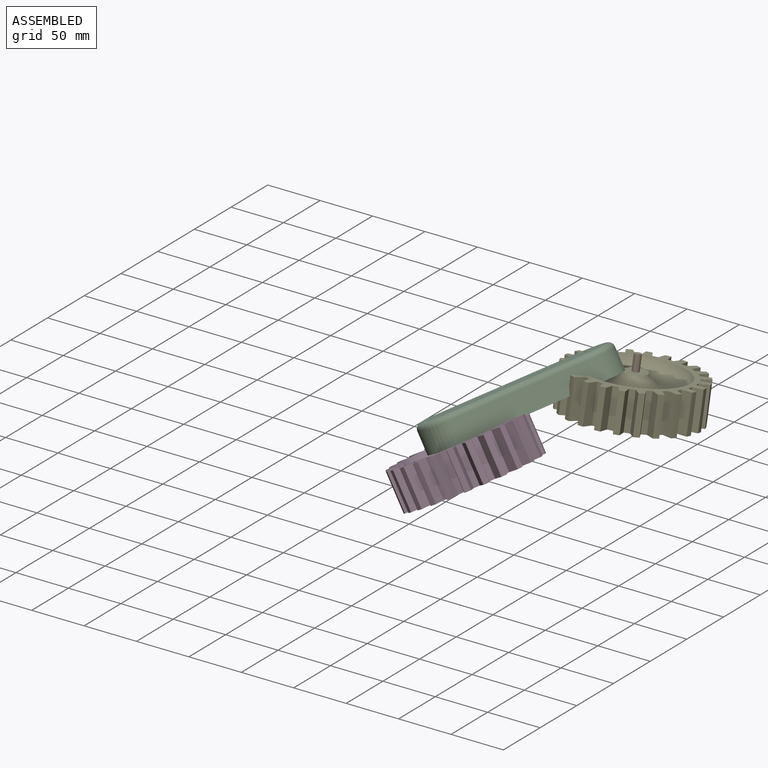
[diagram: assembled view]
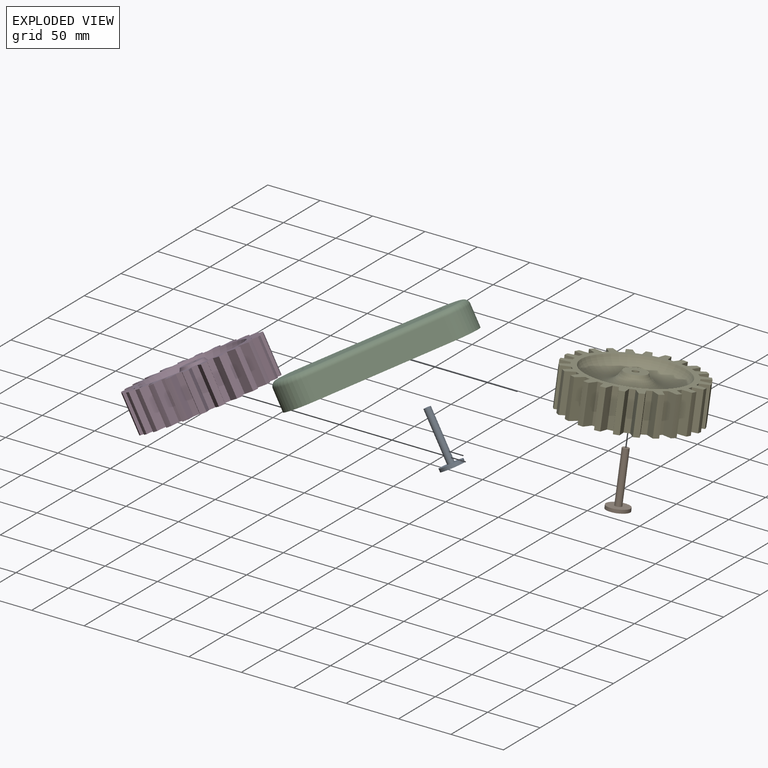
[diagram: exploded view]
GUIDED TOUR — MATED ASSEMBLY (Onshape document 02ab2bfb4b7f6fd71e4ae773, AutoMate assembly 02ab2bfb4b7f6fd71e4ae773_ee6dad4f6289096f42724e85_e1687646da14800b51054b00_default)

This assembly has 5 components, labeled P0..P4 below (a component is one placed occurrence of a part; the same part can appear more than once), held together by 4 mates. A mate is a constraint between two components; its type names the relative motion it leaves free:
  REVOLUTE — leaves rotation about the listed axis free (a hinge).
Axis/direction vectors are unit vectors and 'through' points are millimeter coordinates, both in the assembly's world frame.

MATES
  1. REVOLUTE "Revolute 2": P4 <-> P4, axis (-0.013, -0.196, -0.980) through (78.75, 74.72, 134.48) mm
  2. REVOLUTE "Revolute 5": P4 <-> P1, axis (-0.013, -0.196, -0.980) through (78.30, 67.67, 99.25) mm
  3. REVOLUTE "Revolute 1": P0 <-> P2, axis (-0.507, 0.041, 0.861) through (-28.40, -32.25, 111.13) mm
  4. REVOLUTE "Revolute 3": P3 <-> P0, axis (-0.507, 0.041, 0.861) through (-16.33, -33.23, 90.63) mm

ASSEMBLY ORDER
  1. P4 — the base component [order heuristic]
  2. P0 [order heuristic]
  3. P1 [order heuristic]
  4. P2 [order heuristic]
  5. P3 [order heuristic]
Order-tag legend:
  [order heuristic] — this assembly is geometrically interlocked (no collision-free removal order exists), so components are listed in mate-graph order; insertion feasibility is not verified.

Of the 5 components, 1 carries the full construction recipe — the FeatureScript program that regenerates the part's solid from scratch; the rest are supplied as boundary geometry only.
Each toured component is shown spotlighted twice — in the assembled view, then in the exploded view, where a leader line traces a displaced component back to its assembled socket (saturated green if recipe-attached, orange if geometry-only; every other component desaturated gray) — followed by its recipe or geometry summary and the mates that hold it.
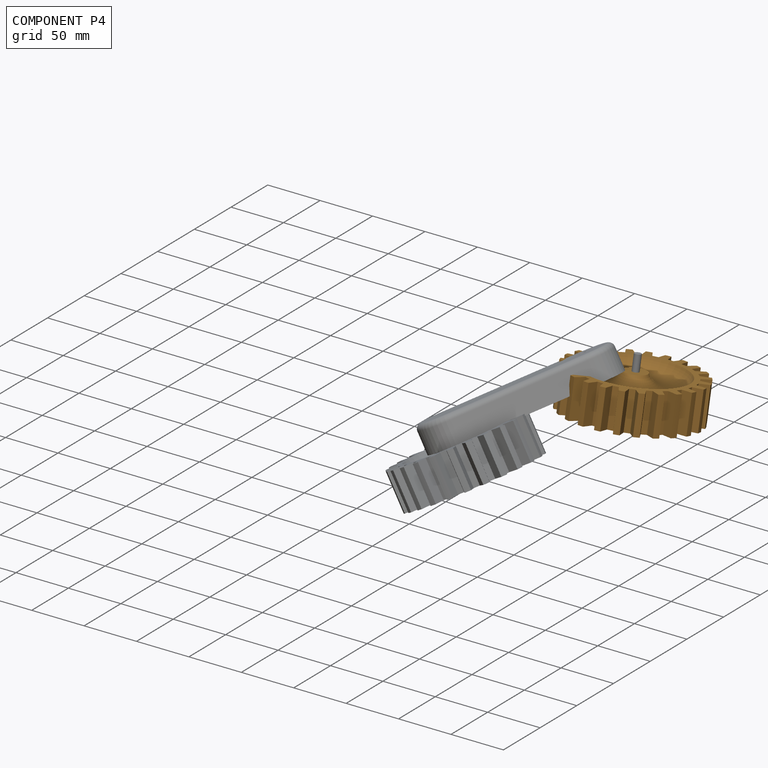
[diagram: component P4 — assembled]
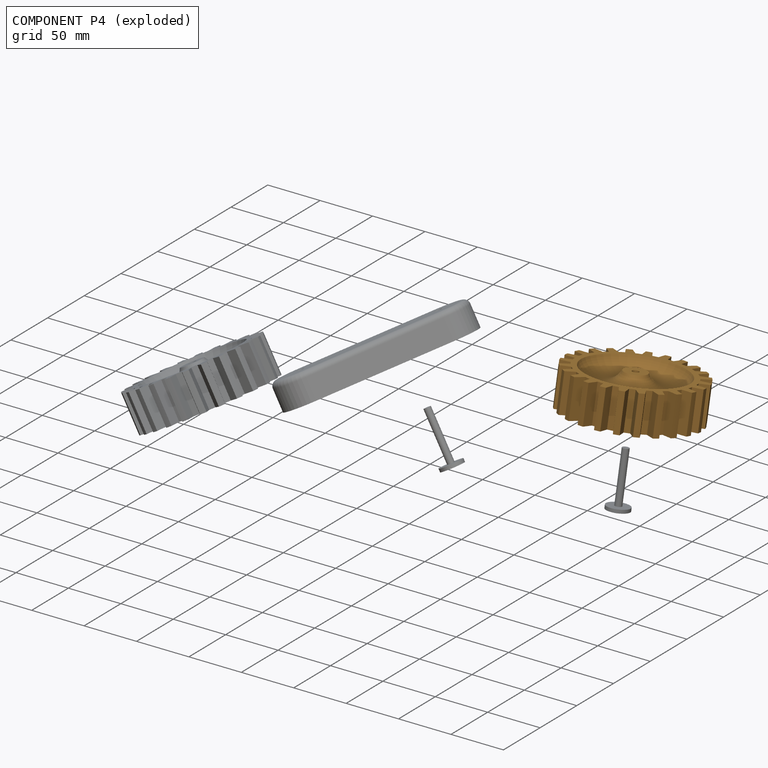
[diagram: component P4 — exploded]
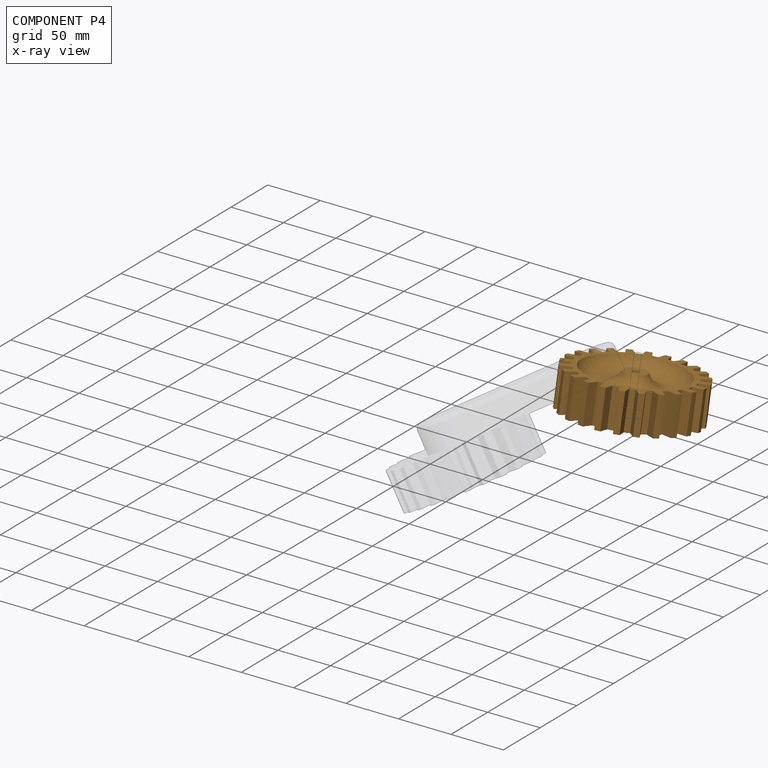
[diagram: component P4 — x-ray view]
COMPONENT P4 — geometry summary (no construction recipe available for this part):
  bounding box: 120.8 x 120.8 x 50.9 mm
  B-rep topology: 1 solid, 103 faces, 594 edges
  volume: 241108 mm^3 (32% of its bounding box)
  symmetry: 6-fold rotationally symmetric about the x axis; 2-fold rotationally symmetric about the y axis; 2-fold rotationally symmetric about the z axis; mirror-symmetric across its x mid-plane, y mid-plane, z mid-plane
Held by: REVOLUTE mate "Revolute 2" to P4; REVOLUTE mate "Revolute 5" to P1.
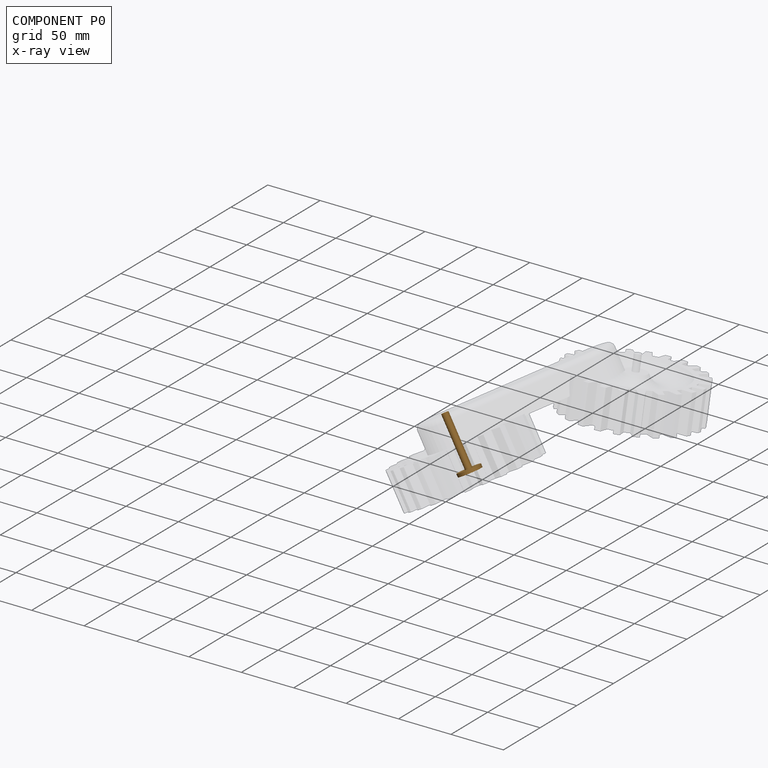
[diagram: component P0 — x-ray view]
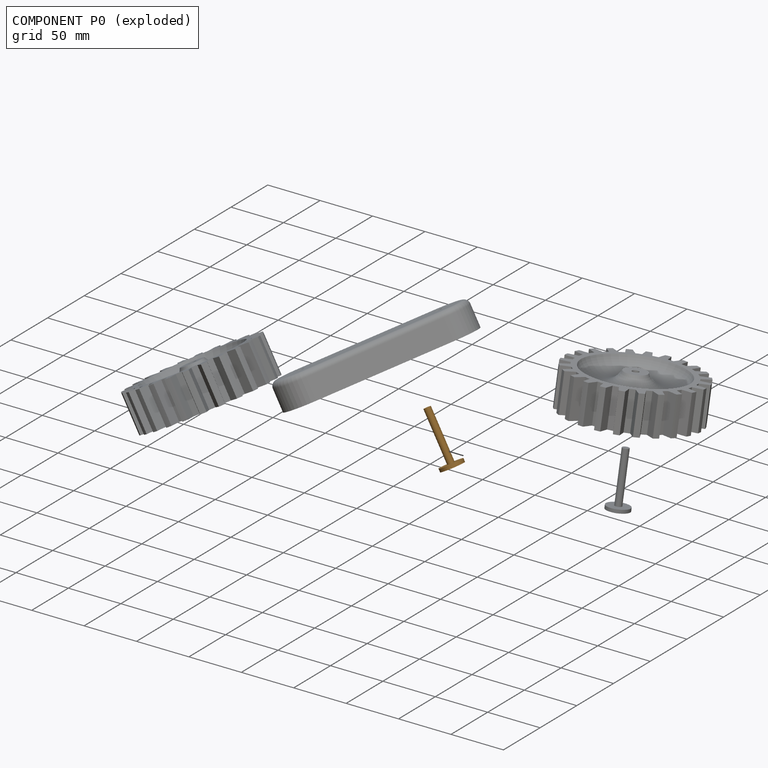
[diagram: component P0 — exploded]
COMPONENT P0 — geometry summary (no construction recipe available for this part):
  bounding box: 50.8 x 21.1 x 21.1 mm
  B-rep topology: 1 solid, 5 faces, 14 edges
  volume: 2623 mm^3 (12% of its bounding box)
  symmetry: revolution-symmetric about the y axis through its bounding-box center; mirror-symmetric across its x mid-plane, z mid-plane
Held by: REVOLUTE mate "Revolute 1" to P2; REVOLUTE mate "Revolute 3" to P3.
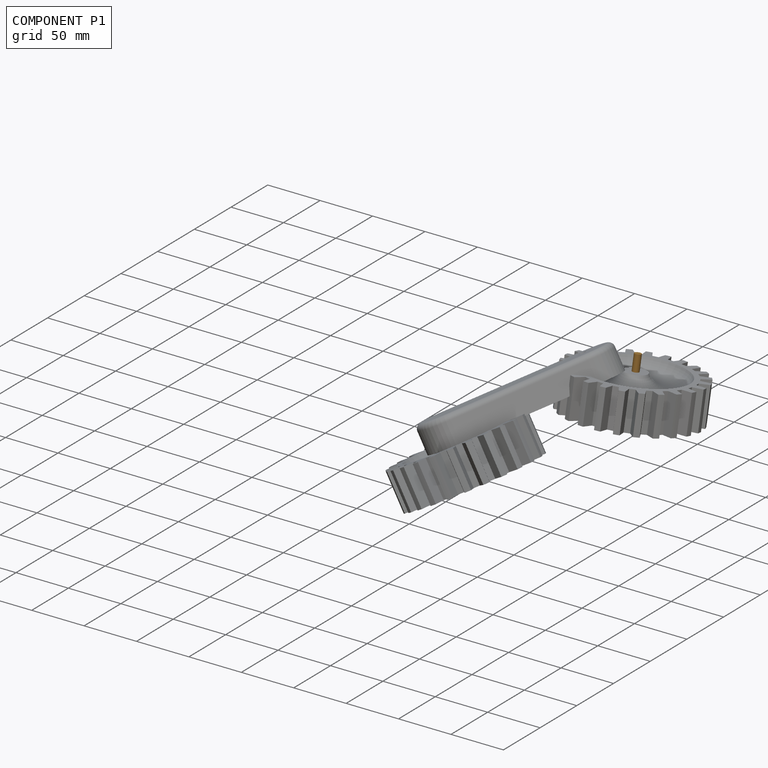
[diagram: component P1 — assembled]
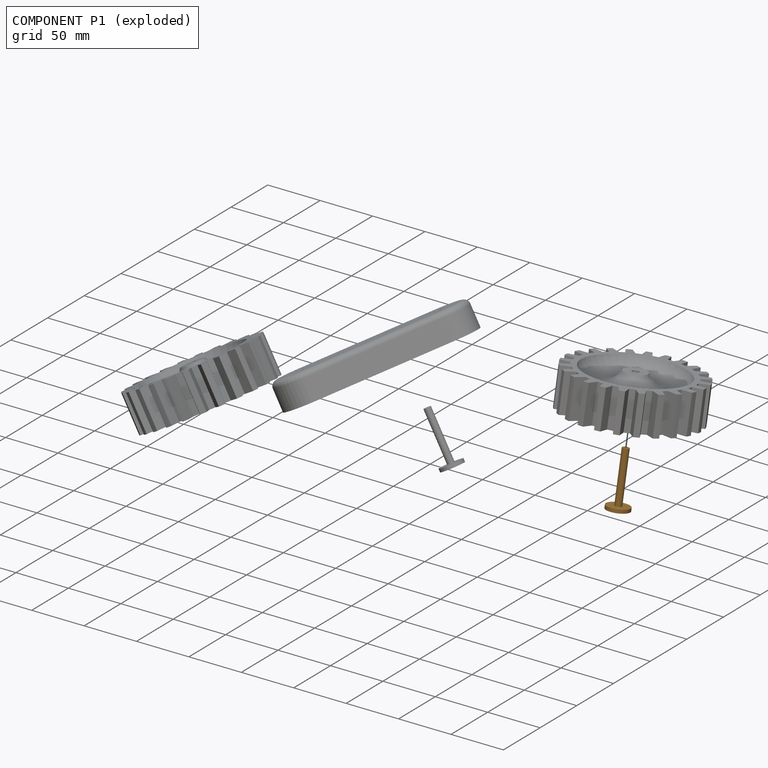
[diagram: component P1 — exploded]
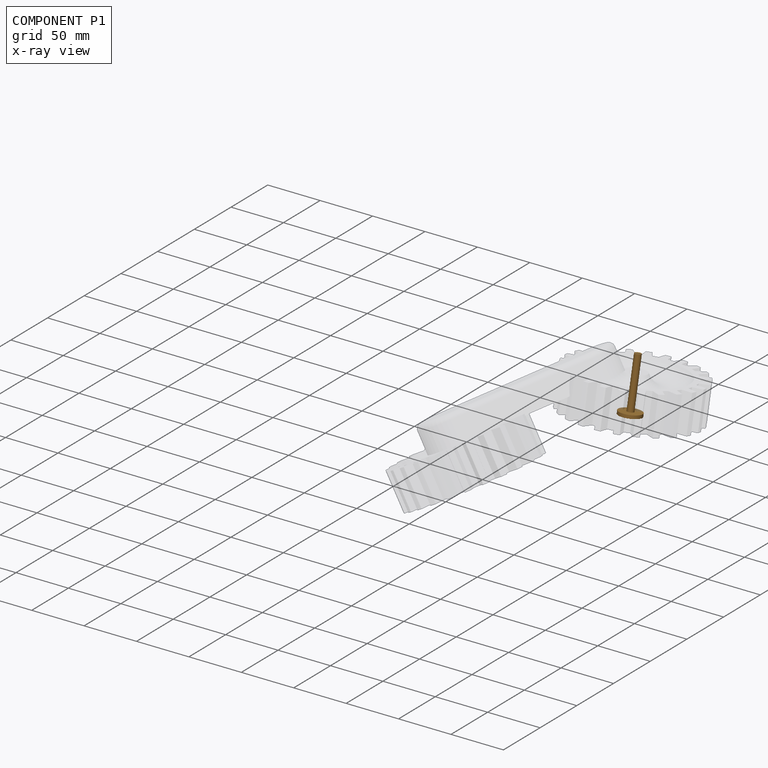
[diagram: component P1 — x-ray view]
COMPONENT P1 — geometry summary (no construction recipe available for this part):
  bounding box: 50.8 x 21.1 x 21.1 mm
  B-rep topology: 1 solid, 5 faces, 14 edges
  volume: 2623 mm^3 (12% of its bounding box)
  symmetry: revolution-symmetric about the y axis through its bounding-box center; mirror-symmetric across its x mid-plane, z mid-plane
Held by: REVOLUTE mate "Revolute 5" to P4.
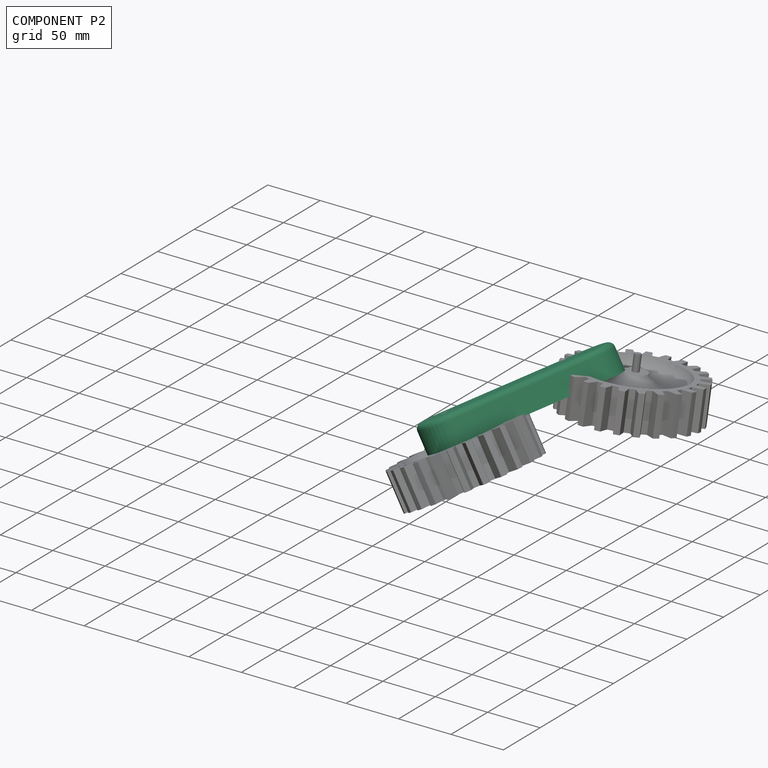
[diagram: component P2 — assembled]
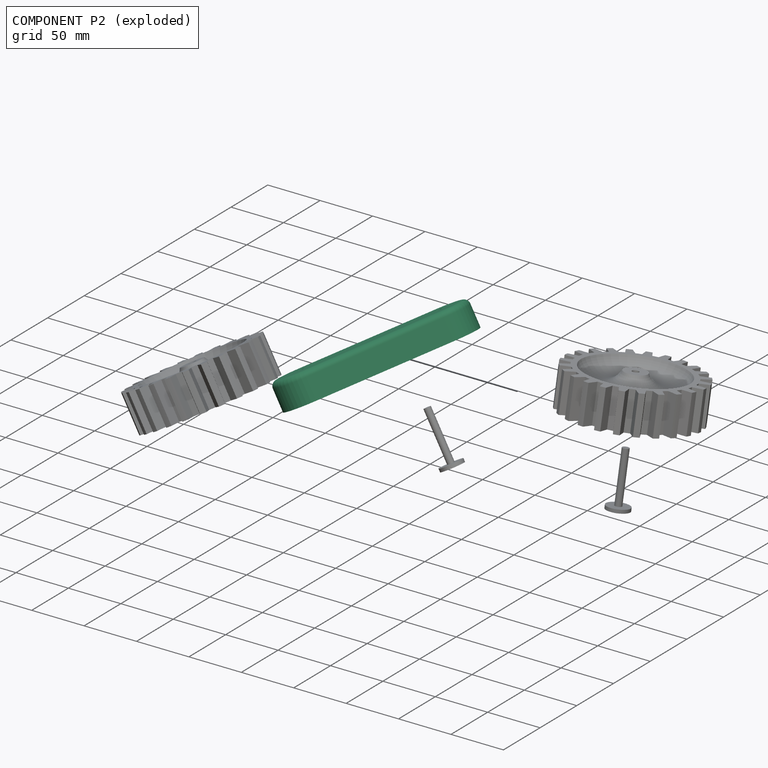
[diagram: component P2 — exploded]
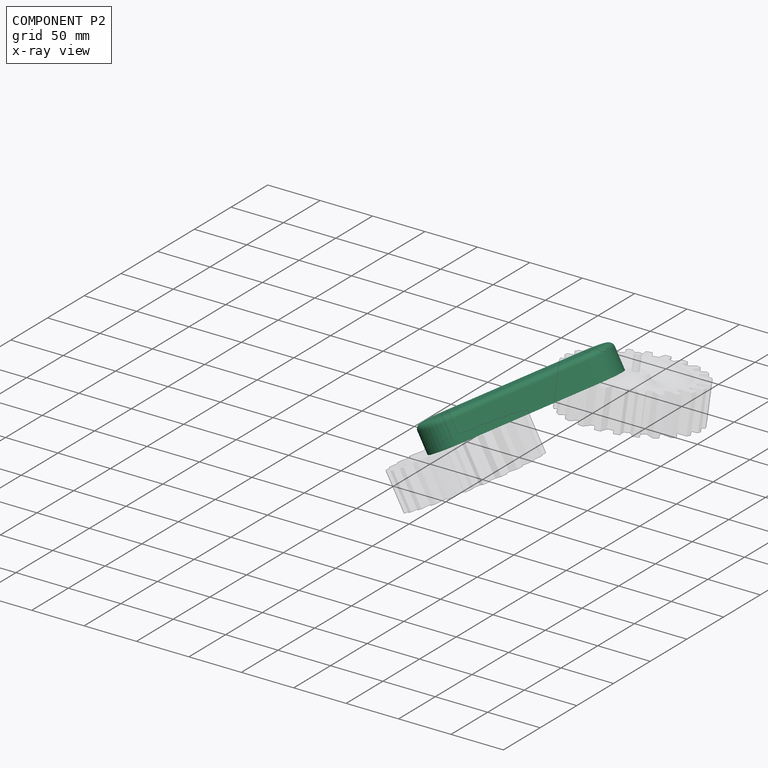
[diagram: component P2 — x-ray view]
COMPONENT P2 — recipe-attached (CADFS 00214591, mesh-verified: the recipe's output STEP matches this component's geometry to below the mesh-comparison resolution (tessellation chordal tolerance ~0.266 mm)).
Held by: REVOLUTE mate "Revolute 1" to P0.
Construction recipe (FeatureScript — the CAD program that rebuilds this solid; sketch coordinates are in the units given by the * unit suffixes, e.g. mm):

FeatureScript 1511;
import(path : "onshape/std/geometry.fs", version : "1511.0");
import(path : "onshape/std/common.fs", version : "1511.0");
const mm = millimeter;
const VERTEX = EntityType.VERTEX;
const EDGE = EntityType.EDGE;
const FACE = EntityType.FACE;
const BODY = EntityType.BODY;
function v(x, y){return vector(x, y);}
function OD(order){return orderDisambiguation(order);}
function OSD(set){return originalSetDisambiguation(set);}
function TD(topology){return topologyDisambiguation(topology);}
function TDD(query){return trueDependencyDisambiguation(query);}
function sQuery(a, b, c) {return sketchEntityQuery(a, b, c);}

annotation { "Feature Type Name" : "Feature", "Feature Type Description" : "" }
export const myFeature = defineFeature(function(context is Context, id is Id, definition is map)
    precondition{}
    {
        {
            var Q0;
            Q0=qCreatedBy(makeId("Front.planeOp"),FACE);
            var sketch = newSketch(context, id + "F0", { "sketchPlane" : qUnion([Q0])});
            skLineSegment(sketch, "E0", {"start": v(0, 0) * mm, "end": v(-58.8, 0) * mm});
            skLineSegment(sketch, "E1", {"start": v(0, 0) * mm, "end": v(58.8, 0) * mm});
            skCircle(sketch, "E2", {"center": v(-58.8, 0) * mm, "radius": 3.18 * mm});
            skCircle(sketch, "E3", {"center": v(58.8, 0) * mm, "radius": 3.17 * mm});
            skLineSegment(sketch, "E4", {"start": v(-58.8, 0) * mm, "end": v(-58.8, 37.44) * mm});
            skLineSegment(sketch, "E5", {"start": v(-58.8, 37.44) * mm, "end": v(-58.8, 0) * mm});
            skLineSegment(sketch, "E6", {"start": v(-58.8, -31.46) * mm, "end": v(-58.8, 3.17) * mm});
            skLineSegment(sketch, "E7", {"start": v(58.8, 0) * mm, "end": v(58.8, 46.4) * mm});
            skLineSegment(sketch, "E8", {"start": v(58.8, 46.4) * mm, "end": v(58.8, 0) * mm});
            skLineSegment(sketch, "E9", {"start": v(58.8, -36.7) * mm, "end": v(58.8, 0) * mm});
            skLineSegment(sketch, "E10", {"start": v(-58.8, 25.4) * mm, "end": v(58.8, 25.4) * mm});
            skLineSegment(sketch, "E11", {"start": v(-58.8, -25.4) * mm, "end": v(58.8, -25.4) * mm});
            skArc(sketch, "E12", {"start": v(-58.8, 25.4) * mm, "mid": v(-84.2, 0) * mm, "end": v(-58.8, -25.4) * mm});
            skArc(sketch, "E13", {"start": v(58.8, -25.4) * mm, "mid": v(84.2, 0) * mm, "end": v(58.8, 25.4) * mm});
            skSolve(sketch);
        }
        {
            var Q0;
            {var subQ5=sQuery(id+"F0.wireOp",EDGE,"E13");Q0=makeQuery(id+"F0.imprint","IMPRINT",FACE,{"disambiguationData":[TD([[makeQuery(id+"F0.imprint","IMPRINT",EDGE,{"derivedFrom":subQ5}),1.0]])]});}
            var Q1;
            {var subQ5=sQuery(id+"F0.wireOp",EDGE,"E10");Q1=makeQuery(id+"F0.imprint","IMPRINT",FACE,{"disambiguationData":[TD([[makeQuery(id+"F0.imprint","IMPRINT",EDGE,{"derivedFrom":subQ5}),-1.0]])]});}
            var Q2;
            {var subQ11=sQuery(id+"F0.wireOp",EDGE,"E11");Q2=makeQuery(id+"F0.imprint","IMPRINT",FACE,{"disambiguationData":[TD([[makeQuery(id+"F0.imprint","IMPRINT",EDGE,{"derivedFrom":subQ11}),1.0]])]});}
            var Q3;
            {var subQ5=sQuery(id+"F0.wireOp",EDGE,"E12");Q3=makeQuery(id+"F0.imprint","IMPRINT",FACE,{"disambiguationData":[TD([[makeQuery(id+"F0.imprint","IMPRINT",EDGE,{"derivedFrom":subQ5}),1.0]])]});}
            extrude(context, id + "F1", {"entities" : qUnion([Q0, Q1, Q2, Q3]), "endBound" : BoundingType.SYMMETRIC, "depth" : 25.4 * mm});
        }
        {
            var Q0;
            Q0=makeQuery(id+"F1.opExtrude","CAP_EDGE",EDGE,{"disambiguationData":[OSD([sQuery(id+"F0.wireOp",EDGE,"E12")])],"isStart":false});
            var Q1;
            Q1=makeQuery(id+"F1.opExtrude","CAP_EDGE",EDGE,{"disambiguationData":[OSD([sQuery(id+"F0.wireOp",EDGE,"E10")])],"isStart":false});
            fillet(context, id + "F2", {"entities" : qUnion([Q0, Q1]), "radius" : 5.08 * mm, "tangentPropagation" : true, "allowEdgeOverflow" : false});
        }
    });
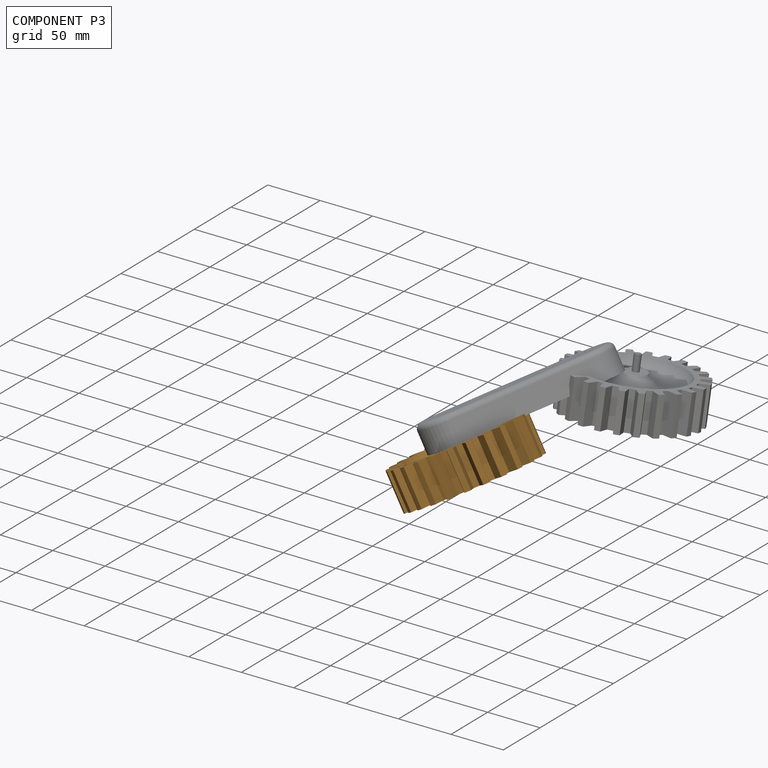
[diagram: component P3 — assembled]
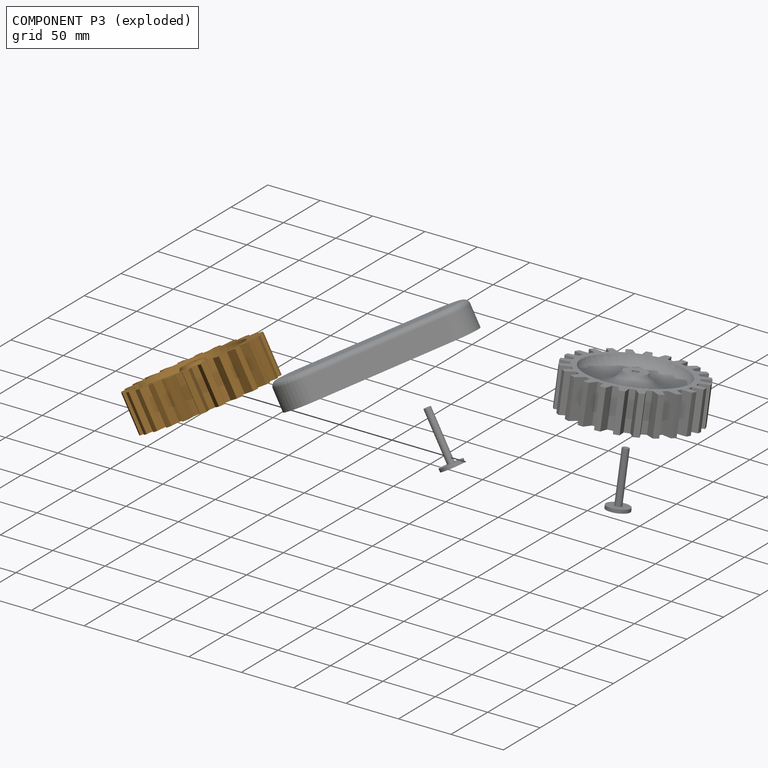
[diagram: component P3 — exploded]
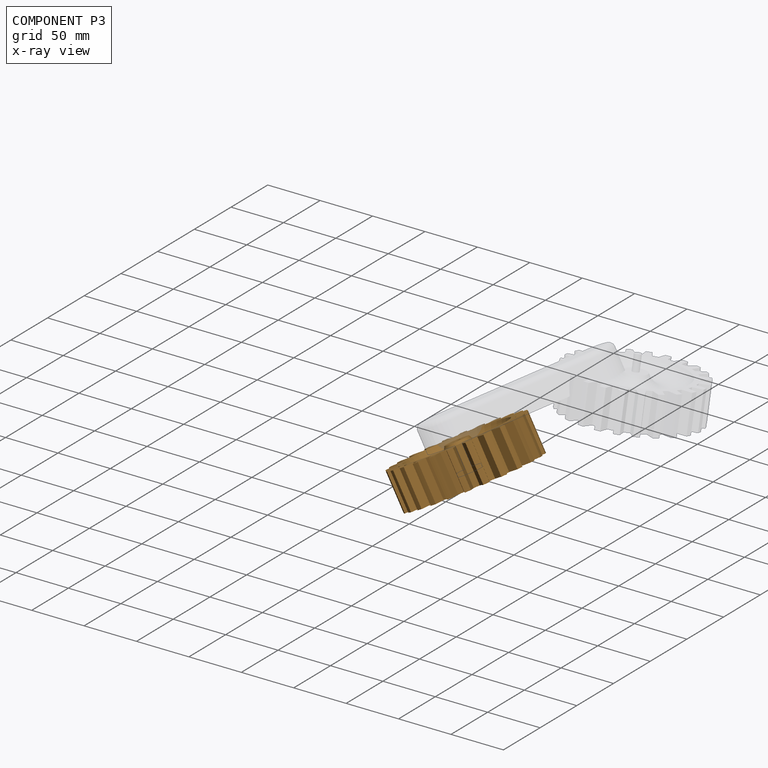
[diagram: component P3 — x-ray view]
COMPONENT P3 — geometry summary (no construction recipe available for this part):
  bounding box: 120.8 x 120.8 x 50.9 mm
  B-rep topology: 1 solid, 103 faces, 594 edges
  volume: 241108 mm^3 (32% of its bounding box)
  symmetry: 6-fold rotationally symmetric about the x axis; 2-fold rotationally symmetric about the y axis; 2-fold rotationally symmetric about the z axis; mirror-symmetric across its x mid-plane, y mid-plane, z mid-plane
Held by: REVOLUTE mate "Revolute 3" to P0.
PROVENANCE & LICENSES
Assembly (occurrences, transforms, mates, per-part STEP geometry): AutoMate dataset, Zenodo record 7776208, CC0.
Construction recipes: CADFS (HuggingFace VladPyatov/CADFS, CC-BY-4.0, layered over the ABC dataset), FeatureScript reconstruction programs keyed by ABC model id.
Join: ABC meta listings map ABC model id -> Onshape documentId; within a shared document, parts are matched by geometric signature (bounding-box dims + volume at 0.1% relative tolerance, exact B-rep face/solid counts).
Verification: 1 of this assembly's 5 components carries a recipe attachment, and every attachment is mesh-verified: the CADFS STEP and the AutoMate member STEP were compared as meshes in their shared local frame (symmetric sampled-point-to-mesh distance); worst across the 1 attachment: below the mesh-comparison resolution (tessellation chordal tolerance ~0.266 mm) on a 178 mm part.
Renders: orthographic iso camera (az 35 / el 25); the floor grid conveys scale (grid pitch printed in each image; no ruler). In the exploded view each component is displaced by its stored offset vector: the offsets alone carry the explosion direction (mate normal/axis signs are not orientation cues and do not encode it), and separation distances are assigned per mate-chain, not proportionally to assembly-order depth.
